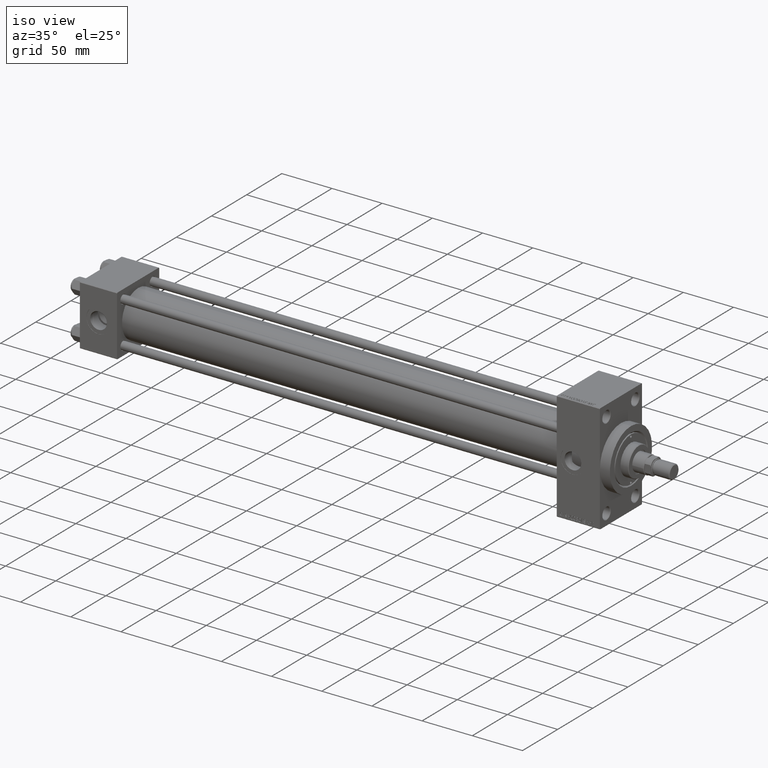
[diagram: clean part render]
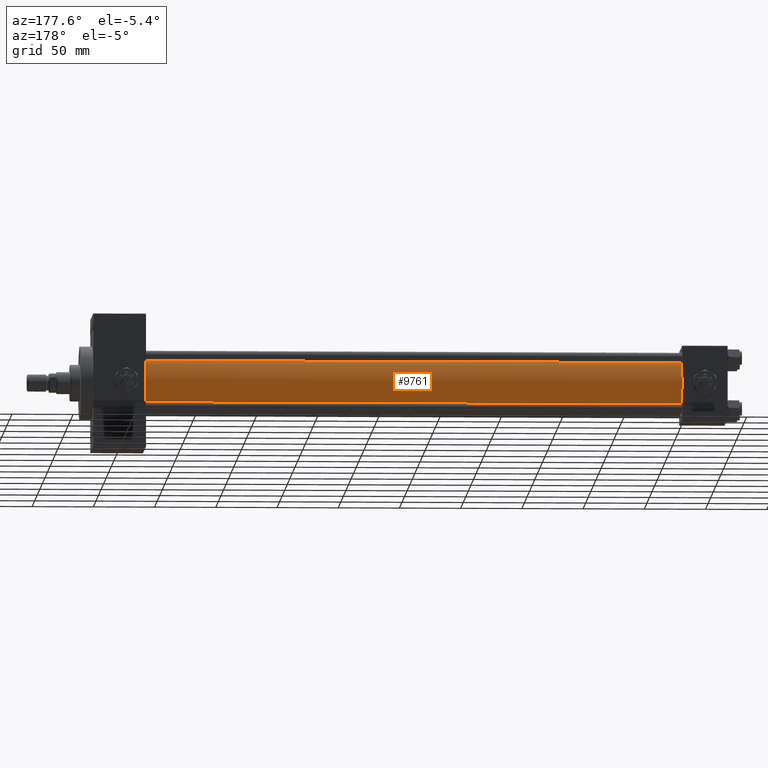
[diagram: tour spotlight — one face highlighted and labeled with its STEP entity id]
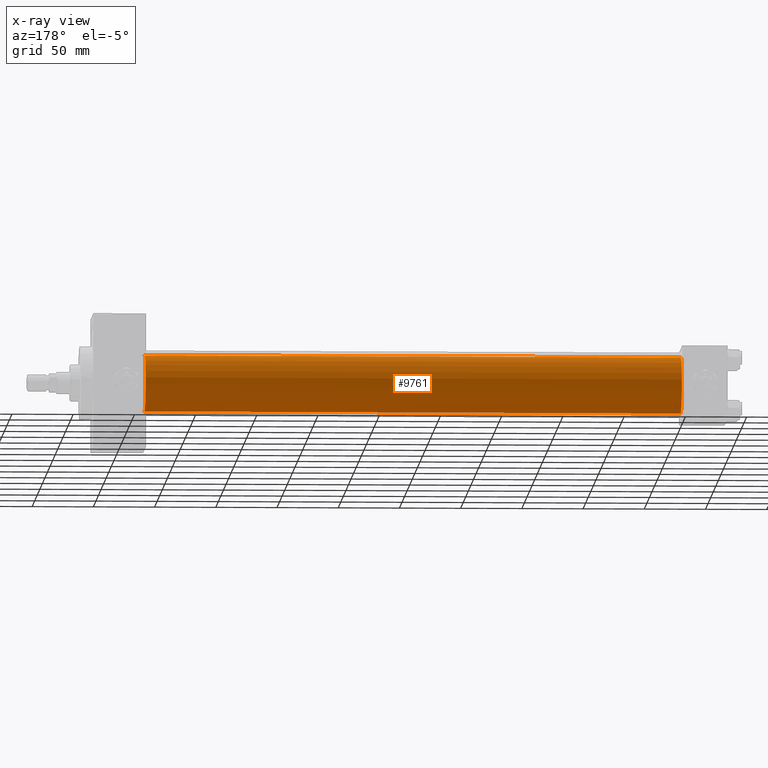
[diagram: x-ray of the same camera — body ghosted, this tour face saturated]
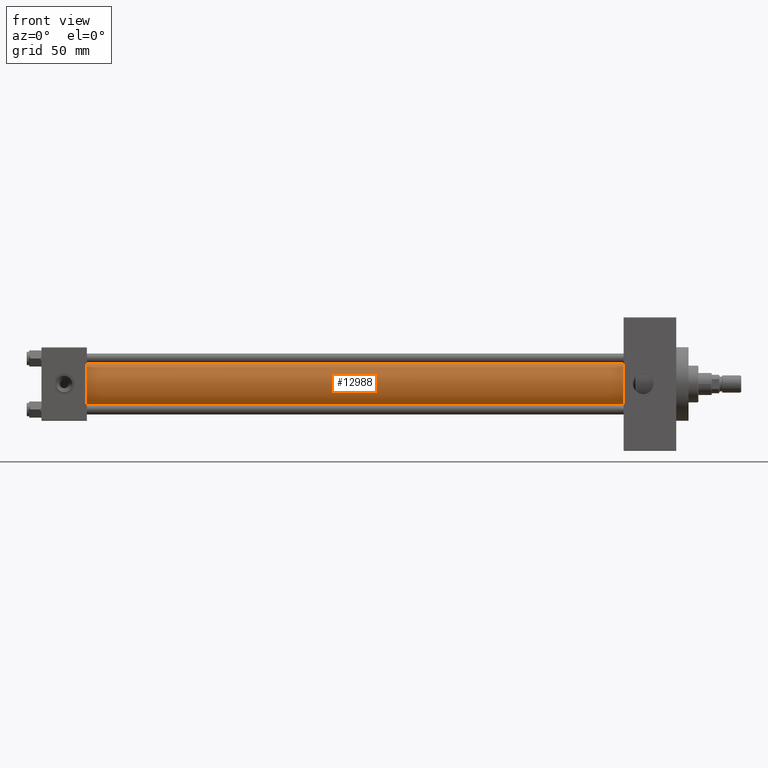
[diagram: tour spotlight — one face highlighted and labeled with its STEP entity id]
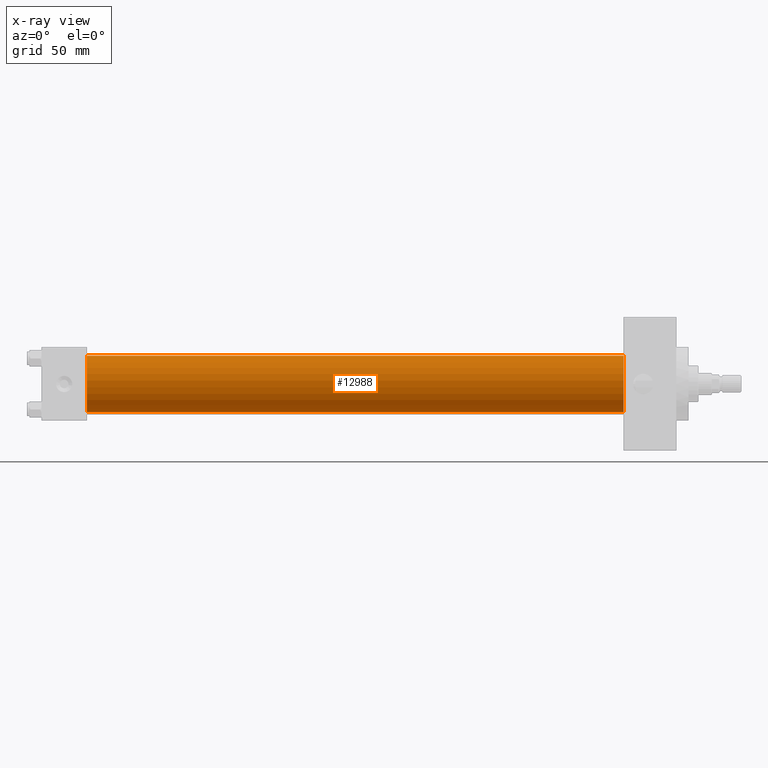
[diagram: x-ray of the same camera — body ghosted, this tour face saturated]
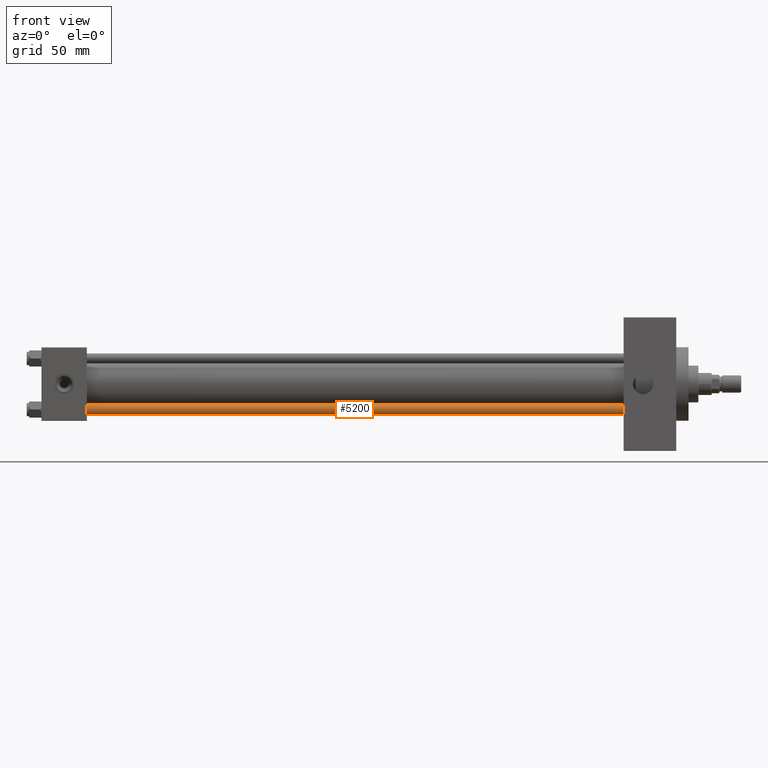
[diagram: tour spotlight — one face highlighted and labeled with its STEP entity id]
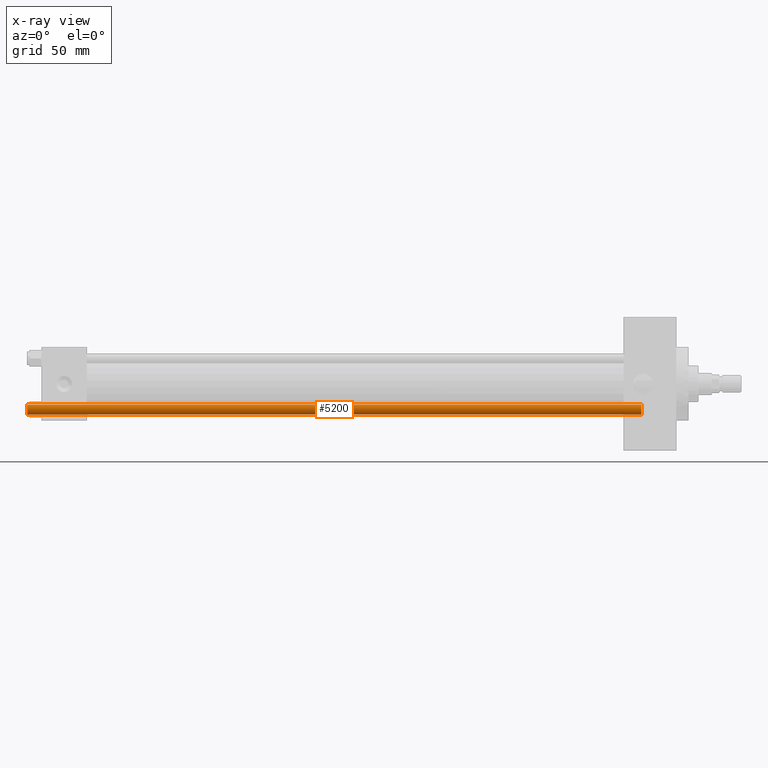
[diagram: x-ray of the same camera — body ghosted, this tour face saturated]
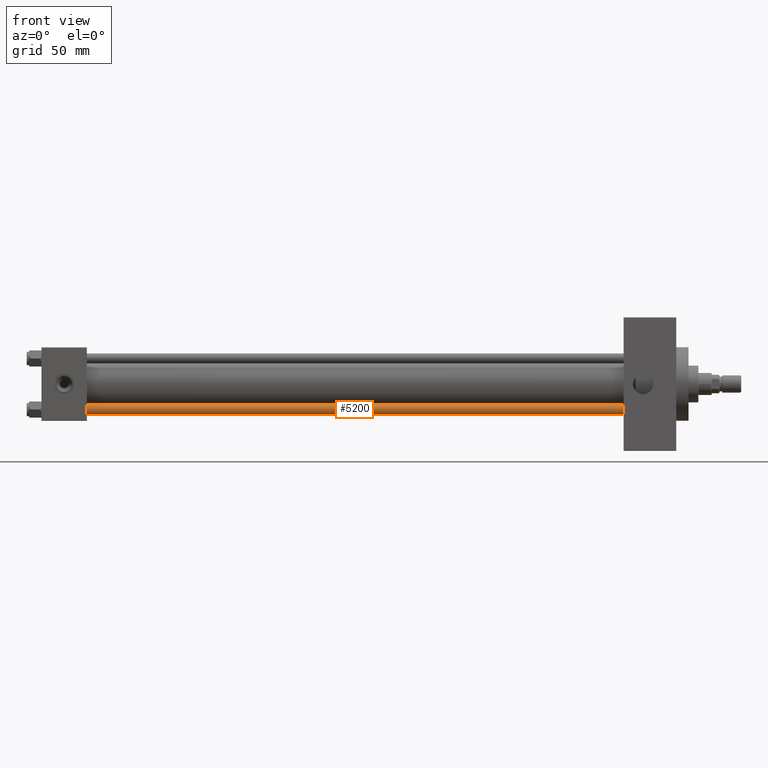
[diagram: tour spotlight — one face highlighted and labeled with its STEP entity id]
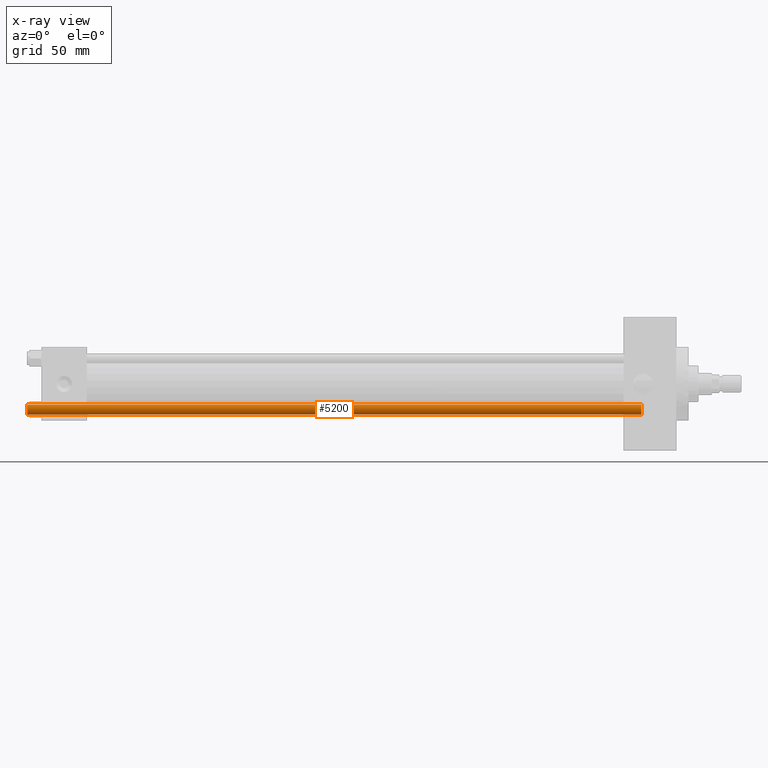
[diagram: x-ray of the same camera — body ghosted, this tour face saturated]
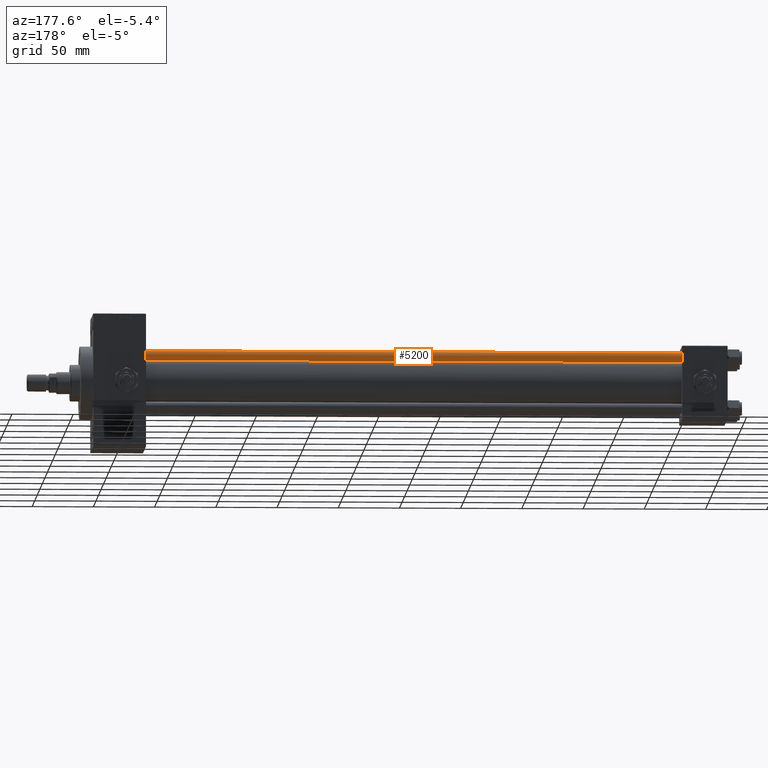
[diagram: tour spotlight — one face highlighted and labeled with its STEP entity id]
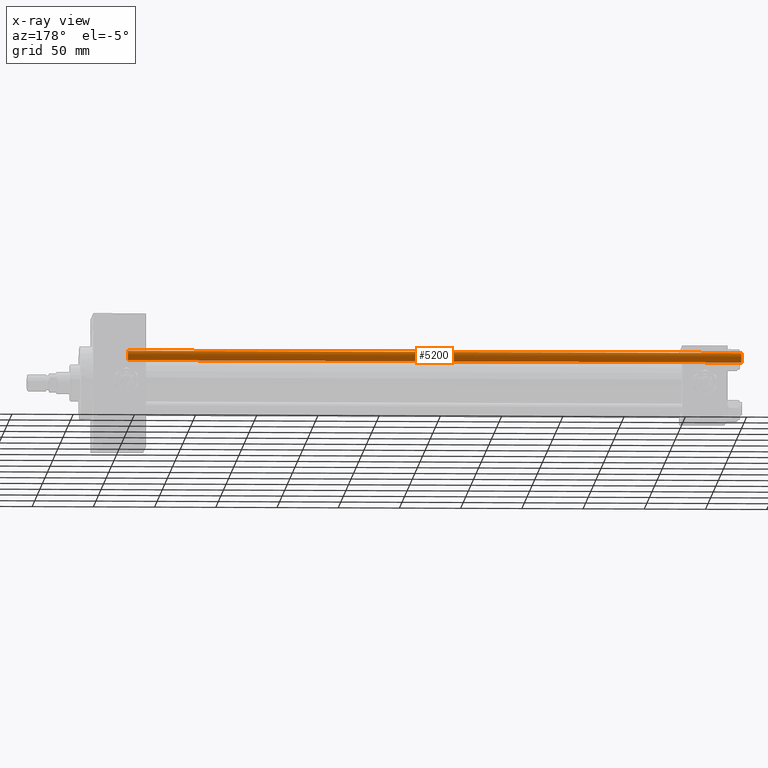
[diagram: x-ray of the same camera — body ghosted, this tour face saturated]
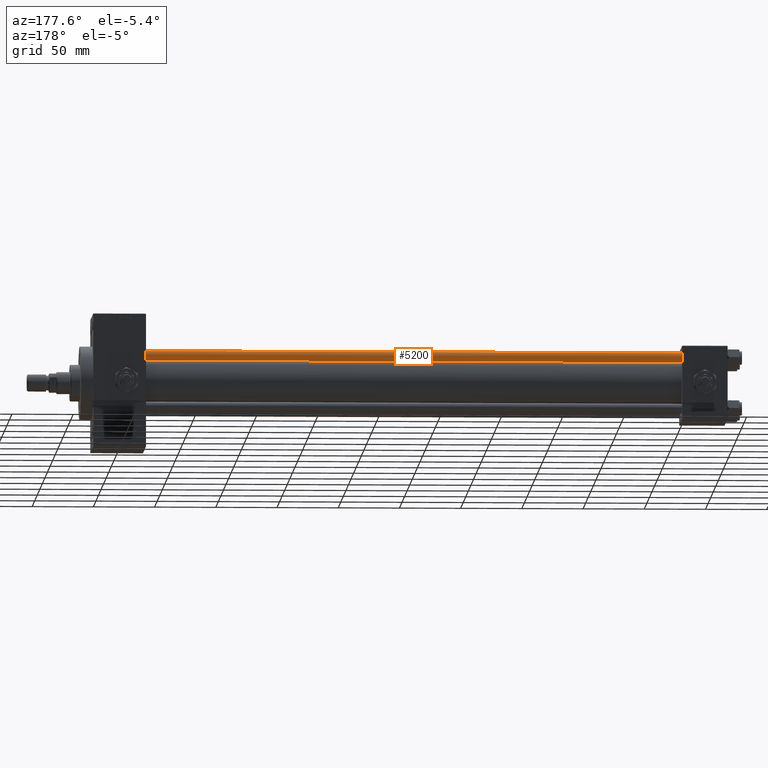
[diagram: tour spotlight — one face highlighted and labeled with its STEP entity id]
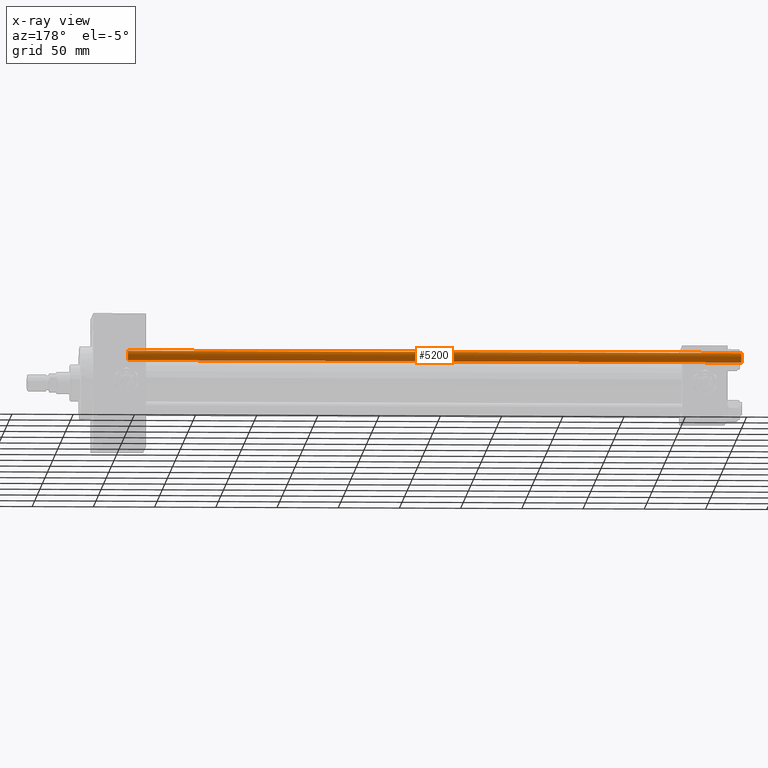
[diagram: x-ray of the same camera — body ghosted, this tour face saturated]
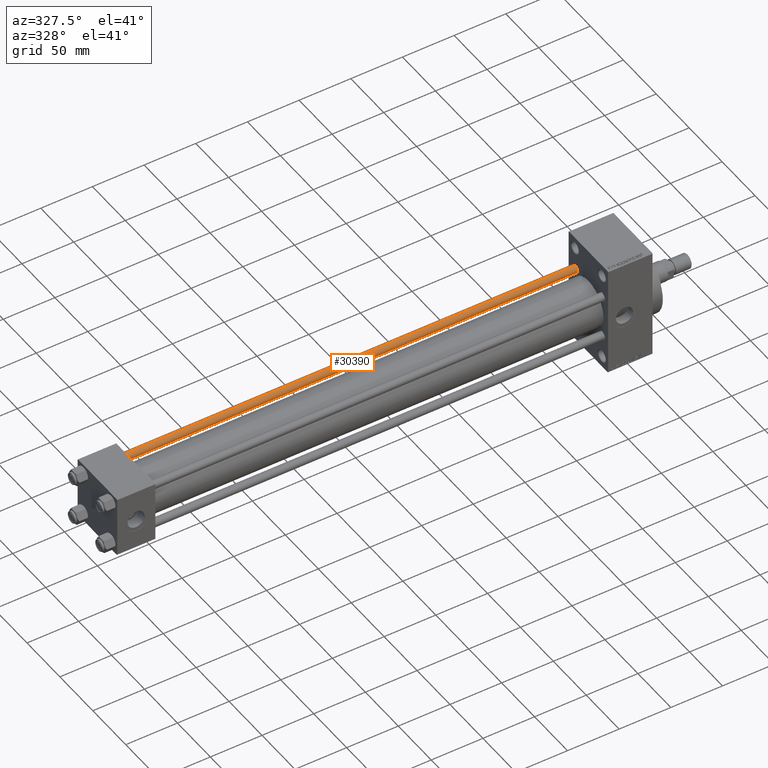
[diagram: tour spotlight — one face highlighted and labeled with its STEP entity id]
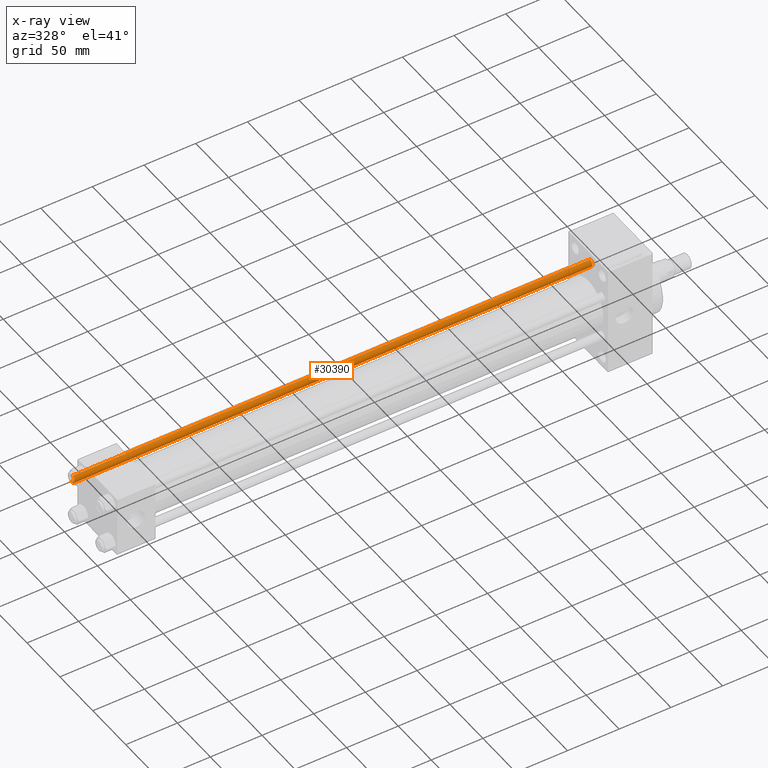
[diagram: x-ray of the same camera — body ghosted, this tour face saturated]
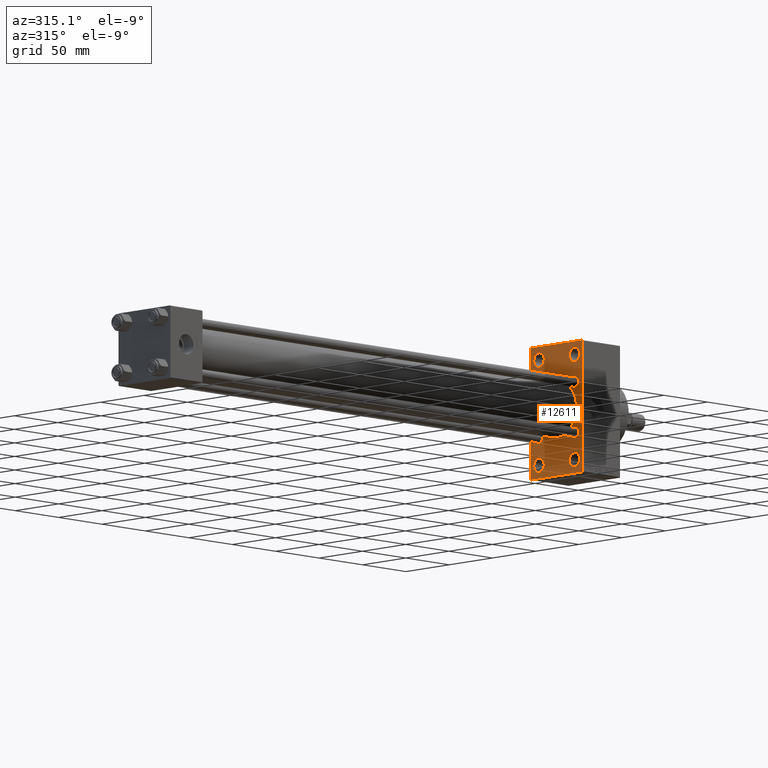
[diagram: tour spotlight — one face highlighted and labeled with its STEP entity id]
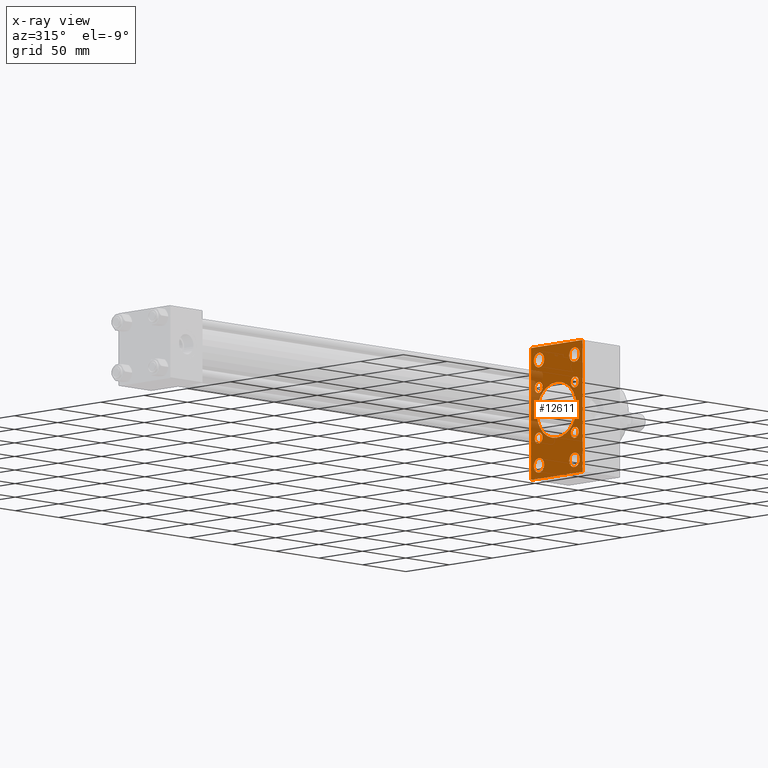
[diagram: x-ray of the same camera — body ghosted, this tour face saturated]
A machine part: a face-by-face anatomy tour. The part has 1228 B-rep faces; the first image is the clean iso view, then the 8 largest visible faces are spotlighted one at a time (largest first), each with its STEP entity span.

Face 1 — auxiliary view, entity #9761. An x-ray twin of the same camera follows (body ghosted, this face saturated) — the face is partly hidden behind the body. In plain terms, the highlighted cylindrical surface (edge-blend (fillet) strip) has radius 23 mm, axis along (-1, -0, -0).
Definition (entity closure, byte-faithful):
#324 = DIRECTION ( 'NONE',  ( 1.000000000000000000, -0.000000000000000000, 0.000000000000000000 ) ) ;
#551 = CARTESIAN_POINT ( 'NONE',  ( 475.0000000000000000, -2.602085213965210642E-15, 0.000000000000000000 ) ) ;
#6511 = EDGE_CURVE ( 'NONE', #38598, #46415, #16557, .T. ) ;
#7230 = LINE ( 'NONE', #22867, #13663 ) ;
#7618 = FACE_OUTER_BOUND ( 'NONE', #15244, .T. ) ;
#7866 = DIRECTION ( 'NONE',  ( -1.000000000000000000, -0.000000000000000000, -0.000000000000000000 ) ) ;
#8002 = CARTESIAN_POINT ( 'NONE',  ( 475.0000000000000000, -2.602085213965210642E-15, 0.000000000000000000 ) ) ;
#8379 = CYLINDRICAL_SURFACE ( 'NONE', #43566, 23.00000000000000000 ) ;
#8755 = DIRECTION ( 'NONE',  ( 1.000000000000000000, 0.000000000000000000, 0.000000000000000000 ) ) ;
#9165 = AXIS2_PLACEMENT_3D ( 'NONE', #8002, #8755, #35799 ) ;
#9761 = ADVANCED_FACE ( 'NONE', ( #7618 ), #8379, .T. ) ;
#12930 = CIRCLE ( 'NONE', #39544, 23.00000000000000000 ) ;
#13663 = VECTOR ( 'NONE', #41592, 1000.000000000000000 ) ;
#15244 = EDGE_LOOP ( 'NONE', ( #26399, #18777, #28300, #29517 ) ) ;
#16125 = VERTEX_POINT ( 'NONE', #17919 ) ;
#16557 = LINE ( 'NONE', #42837, #38612 ) ;
#17449 = CARTESIAN_POINT ( 'NONE',  ( 475.0000000000000000, 2.146024240737016609E-16, -23.00000000000000000 ) ) ;
#17919 = CARTESIAN_POINT ( 'NONE',  ( 475.0000000000000000, -2.602085213965210642E-15, 23.00000000000000000 ) ) ;
#18777 = ORIENTED_EDGE ( 'NONE', *, *, #6511, .T. ) ;
#19485 = DIRECTION ( 'NONE',  ( 0.000000000000000000, 0.000000000000000000, 1.000000000000000000 ) ) ;
#21106 = EDGE_CURVE ( 'NONE', #38598, #16125, #45464, .T. ) ;
#22867 = CARTESIAN_POINT ( 'NONE',  ( 475.0000000000000000, -2.602085213965210642E-15, 23.00000000000000000 ) ) ;
#23220 = CARTESIAN_POINT ( 'NONE',  ( 36.99999999999997868, 2.146024240737016609E-16, -23.00000000000000000 ) ) ;
#26399 = ORIENTED_EDGE ( 'NONE', *, *, #21106, .F. ) ;
#28174 = DIRECTION ( 'NONE',  ( -1.000000000000000000, -0.000000000000000000, -0.000000000000000000 ) ) ;
#28300 = ORIENTED_EDGE ( 'NONE', *, *, #43432, .T. ) ;
#29517 = ORIENTED_EDGE ( 'NONE', *, *, #41505, .F. ) ;
#30374 = CARTESIAN_POINT ( 'NONE',  ( 36.99999999999997868, -2.602085213965210642E-15, 0.000000000000000000 ) ) ;
#30435 = CARTESIAN_POINT ( 'NONE',  ( 36.99999999999997868, -2.602085213965210642E-15, 23.00000000000000000 ) ) ;
#35388 = VERTEX_POINT ( 'NONE', #30435 ) ;
#35799 = DIRECTION ( 'NONE',  ( 0.000000000000000000, 0.000000000000000000, -1.000000000000000000 ) ) ;
#38598 = VERTEX_POINT ( 'NONE', #17449 ) ;
#38612 = VECTOR ( 'NONE', #28174, 1000.000000000000000 ) ;
#39544 = AXIS2_PLACEMENT_3D ( 'NONE', #30374, #324, #45782 ) ;
#41505 = EDGE_CURVE ( 'NONE', #16125, #35388, #7230, .T. ) ;
#41592 = DIRECTION ( 'NONE',  ( -1.000000000000000000, -0.000000000000000000, -0.000000000000000000 ) ) ;
#42837 = CARTESIAN_POINT ( 'NONE',  ( 475.0000000000000000, 2.146024240737016609E-16, -23.00000000000000000 ) ) ;
#43432 = EDGE_CURVE ( 'NONE', #46415, #35388, #12930, .T. ) ;
#43566 = AXIS2_PLACEMENT_3D ( 'NONE', #551, #7866, #19485 ) ;
#45464 = CIRCLE ( 'NONE', #9165, 23.00000000000000000 ) ;
#45782 = DIRECTION ( 'NONE',  ( 0.000000000000000000, 0.000000000000000000, 1.000000000000000000 ) ) ;
#46415 = VERTEX_POINT ( 'NONE', #23220 ) ;

Face 2 — front view, entity #12988. An x-ray twin of the same camera follows (body ghosted, this face saturated) — the face is partly hidden behind the body. In plain terms, the highlighted cylindrical surface (edge-blend (fillet) strip) has radius 23 mm, axis along (-1, -0, -0).
Definition (entity closure, byte-faithful):
#3195 = CIRCLE ( 'NONE', #20095, 23.00000000000000000 ) ;
#4576 = CARTESIAN_POINT ( 'NONE',  ( 475.0000000000000000, -2.602085213965210642E-15, 0.000000000000000000 ) ) ;
#5739 = ORIENTED_EDGE ( 'NONE', *, *, #6511, .F. ) ;
#6511 = EDGE_CURVE ( 'NONE', #38598, #46415, #16557, .T. ) ;
#7230 = LINE ( 'NONE', #22867, #13663 ) ;
#8823 = DIRECTION ( 'NONE',  ( 0.000000000000000000, 0.000000000000000000, 1.000000000000000000 ) ) ;
#9173 = FACE_OUTER_BOUND ( 'NONE', #12565, .T. ) ;
#12565 = EDGE_LOOP ( 'NONE', ( #5739, #24984, #33519, #24322 ) ) ;
#12988 = ADVANCED_FACE ( 'NONE', ( #9173 ), #39484, .T. ) ;
#13456 = DIRECTION ( 'NONE',  ( 0.000000000000000000, 0.000000000000000000, 1.000000000000000000 ) ) ;
#13663 = VECTOR ( 'NONE', #41592, 1000.000000000000000 ) ;
#16125 = VERTEX_POINT ( 'NONE', #17919 ) ;
#16557 = LINE ( 'NONE', #42837, #38612 ) ;
#17449 = CARTESIAN_POINT ( 'NONE',  ( 475.0000000000000000, 2.146024240737016609E-16, -23.00000000000000000 ) ) ;
#17919 = CARTESIAN_POINT ( 'NONE',  ( 475.0000000000000000, -2.602085213965210642E-15, 23.00000000000000000 ) ) ;
#18798 = EDGE_CURVE ( 'NONE', #16125, #38598, #25202, .T. ) ;
#20095 = AXIS2_PLACEMENT_3D ( 'NONE', #32310, #36096, #8823 ) ;
#21881 = AXIS2_PLACEMENT_3D ( 'NONE', #40477, #44019, #13456 ) ;
#22867 = CARTESIAN_POINT ( 'NONE',  ( 475.0000000000000000, -2.602085213965210642E-15, 23.00000000000000000 ) ) ;
#23220 = CARTESIAN_POINT ( 'NONE',  ( 36.99999999999997868, 2.146024240737016609E-16, -23.00000000000000000 ) ) ;
#23245 = DIRECTION ( 'NONE',  ( 1.000000000000000000, 0.000000000000000000, 0.000000000000000000 ) ) ;
#24322 = ORIENTED_EDGE ( 'NONE', *, *, #41683, .T. ) ;
#24984 = ORIENTED_EDGE ( 'NONE', *, *, #18798, .F. ) ;
#25202 = CIRCLE ( 'NONE', #42135, 23.00000000000000000 ) ;
#28174 = DIRECTION ( 'NONE',  ( -1.000000000000000000, -0.000000000000000000, -0.000000000000000000 ) ) ;
#30435 = CARTESIAN_POINT ( 'NONE',  ( 36.99999999999997868, -2.602085213965210642E-15, 23.00000000000000000 ) ) ;
#32310 = CARTESIAN_POINT ( 'NONE',  ( 36.99999999999997868, -2.602085213965210642E-15, 0.000000000000000000 ) ) ;
#33519 = ORIENTED_EDGE ( 'NONE', *, *, #41505, .T. ) ;
#35388 = VERTEX_POINT ( 'NONE', #30435 ) ;
#35895 = DIRECTION ( 'NONE',  ( 0.000000000000000000, 0.000000000000000000, -1.000000000000000000 ) ) ;
#36096 = DIRECTION ( 'NONE',  ( 1.000000000000000000, -0.000000000000000000, 0.000000000000000000 ) ) ;
#38598 = VERTEX_POINT ( 'NONE', #17449 ) ;
#38612 = VECTOR ( 'NONE', #28174, 1000.000000000000000 ) ;
#39484 = CYLINDRICAL_SURFACE ( 'NONE', #21881, 23.00000000000000000 ) ;
#40477 = CARTESIAN_POINT ( 'NONE',  ( 475.0000000000000000, -2.602085213965210642E-15, 0.000000000000000000 ) ) ;
#41505 = EDGE_CURVE ( 'NONE', #16125, #35388, #7230, .T. ) ;
#41592 = DIRECTION ( 'NONE',  ( -1.000000000000000000, -0.000000000000000000, -0.000000000000000000 ) ) ;
#41683 = EDGE_CURVE ( 'NONE', #35388, #46415, #3195, .T. ) ;
#42135 = AXIS2_PLACEMENT_3D ( 'NONE', #4576, #23245, #35895 ) ;
#42837 = CARTESIAN_POINT ( 'NONE',  ( 475.0000000000000000, 2.146024240737016609E-16, -23.00000000000000000 ) ) ;
#44019 = DIRECTION ( 'NONE',  ( -1.000000000000000000, -0.000000000000000000, -0.000000000000000000 ) ) ;
#46415 = VERTEX_POINT ( 'NONE', #23220 ) ;

Face 3 — front view, entity #5200. An x-ray twin of the same camera follows (body ghosted, this face saturated) — the face is partly hidden behind the body. In plain terms, the highlighted cylindrical surface (edge-blend (fillet) strip) has radius 4 mm, axis along (1, 0, 0).
Definition (entity closure, byte-faithful):
#1383 = CYLINDRICAL_SURFACE ( 'NONE', #14371, 4.000000000000000000 ) ;
#1637 = DIRECTION ( 'NONE',  ( -1.000000000000000000, 0.000000000000000000, 0.000000000000000000 ) ) ;
#2119 = AXIS2_PLACEMENT_3D ( 'NONE', #41424, #18903, #22204 ) ;
#2853 = CARTESIAN_POINT ( 'NONE',  ( -4.000000000000000000, 0.000000000000000000, 0.4999999999999449329 ) ) ;
#4301 = VERTEX_POINT ( 'NONE', #27884 ) ;
#5200 = ADVANCED_FACE ( 'NONE', ( #36246 ), #1383, .T. ) ;
#5929 = DIRECTION ( 'NONE',  ( -0.000000000000000000, -0.000000000000000000, -1.000000000000000000 ) ) ;
#6596 = CARTESIAN_POINT ( 'NONE',  ( 4.000000000000000000, 4.898587196589412829E-16, 502.0000000000000000 ) ) ;
#7584 = CIRCLE ( 'NONE', #13275, 4.000000000000000000 ) ;
#10420 = ORIENTED_EDGE ( 'NONE', *, *, #29584, .T. ) ;
#10837 = CARTESIAN_POINT ( 'NONE',  ( 4.000000000000000000, 4.898587196589412829E-16, 0.4999999999999449329 ) ) ;
#10989 = VERTEX_POINT ( 'NONE', #10837 ) ;
#13275 = AXIS2_PLACEMENT_3D ( 'NONE', #21988, #33617, #16653 ) ;
#13415 = CIRCLE ( 'NONE', #2119, 4.000000000000000000 ) ;
#14253 = CARTESIAN_POINT ( 'NONE',  ( -4.000000000000000000, 0.000000000000000000, 502.0000000000000000 ) ) ;
#14371 = AXIS2_PLACEMENT_3D ( 'NONE', #16788, #5929, #1637 ) ;
#14758 = VERTEX_POINT ( 'NONE', #2853 ) ;
#16653 = DIRECTION ( 'NONE',  ( 1.000000000000000000, 0.000000000000000000, 0.000000000000000000 ) ) ;
#16788 = CARTESIAN_POINT ( 'NONE',  ( 0.000000000000000000, 0.000000000000000000, 502.0000000000000000 ) ) ;
#18679 = DIRECTION ( 'NONE',  ( -0.000000000000000000, -0.000000000000000000, -1.000000000000000000 ) ) ;
#18903 = DIRECTION ( 'NONE',  ( -0.000000000000000000, -0.000000000000000000, 1.000000000000000000 ) ) ;
#19181 = ORIENTED_EDGE ( 'NONE', *, *, #24812, .T. ) ;
#21811 = DIRECTION ( 'NONE',  ( -0.000000000000000000, -0.000000000000000000, -1.000000000000000000 ) ) ;
#21988 = CARTESIAN_POINT ( 'NONE',  ( 0.000000000000000000, 0.000000000000000000, 501.4999999999999432 ) ) ;
#22204 = DIRECTION ( 'NONE',  ( 1.000000000000000000, 0.000000000000000000, 0.000000000000000000 ) ) ;
#23663 = CARTESIAN_POINT ( 'NONE',  ( 4.000000000000000000, 4.898587196589412829E-16, 501.4999999999999432 ) ) ;
#24812 = EDGE_CURVE ( 'NONE', #34242, #10989, #37645, .T. ) ;
#25604 = LINE ( 'NONE', #14253, #26761 ) ;
#25891 = EDGE_CURVE ( 'NONE', #4301, #34242, #7584, .T. ) ;
#26761 = VECTOR ( 'NONE', #21811, 1000.000000000000000 ) ;
#27884 = CARTESIAN_POINT ( 'NONE',  ( -4.000000000000000000, 0.000000000000000000, 501.4999999999999432 ) ) ;
#29584 = EDGE_CURVE ( 'NONE', #10989, #14758, #13415, .T. ) ;
#31528 = EDGE_LOOP ( 'NONE', ( #47548, #19181, #10420, #42967 ) ) ;
#33617 = DIRECTION ( 'NONE',  ( 0.000000000000000000, 0.000000000000000000, -1.000000000000000000 ) ) ;
#34242 = VERTEX_POINT ( 'NONE', #23663 ) ;
#36246 = FACE_OUTER_BOUND ( 'NONE', #31528, .T. ) ;
#37645 = LINE ( 'NONE', #6596, #47231 ) ;
#41424 = CARTESIAN_POINT ( 'NONE',  ( 0.000000000000000000, 0.000000000000000000, 0.4999999999999449329 ) ) ;
#42967 = ORIENTED_EDGE ( 'NONE', *, *, #47957, .F. ) ;
#47231 = VECTOR ( 'NONE', #18679, 1000.000000000000000 ) ;
#47548 = ORIENTED_EDGE ( 'NONE', *, *, #25891, .T. ) ;
#47957 = EDGE_CURVE ( 'NONE', #4301, #14758, #25604, .T. ) ;

Face 4 — front view, entity #5200. An x-ray twin of the same camera follows (body ghosted, this face saturated) — the face is partly hidden behind the body. In plain terms, the highlighted cylindrical surface (edge-blend (fillet) strip) has radius 4 mm, axis along (-1, 0, 0).
Definition (entity closure, byte-faithful):
#1383 = CYLINDRICAL_SURFACE ( 'NONE', #14371, 4.000000000000000000 ) ;
#1637 = DIRECTION ( 'NONE',  ( -1.000000000000000000, 0.000000000000000000, 0.000000000000000000 ) ) ;
#2119 = AXIS2_PLACEMENT_3D ( 'NONE', #41424, #18903, #22204 ) ;
#2853 = CARTESIAN_POINT ( 'NONE',  ( -4.000000000000000000, 0.000000000000000000, 0.4999999999999449329 ) ) ;
#4301 = VERTEX_POINT ( 'NONE', #27884 ) ;
#5200 = ADVANCED_FACE ( 'NONE', ( #36246 ), #1383, .T. ) ;
#5929 = DIRECTION ( 'NONE',  ( -0.000000000000000000, -0.000000000000000000, -1.000000000000000000 ) ) ;
#6596 = CARTESIAN_POINT ( 'NONE',  ( 4.000000000000000000, 4.898587196589412829E-16, 502.0000000000000000 ) ) ;
#7584 = CIRCLE ( 'NONE', #13275, 4.000000000000000000 ) ;
#10420 = ORIENTED_EDGE ( 'NONE', *, *, #29584, .T. ) ;
#10837 = CARTESIAN_POINT ( 'NONE',  ( 4.000000000000000000, 4.898587196589412829E-16, 0.4999999999999449329 ) ) ;
#10989 = VERTEX_POINT ( 'NONE', #10837 ) ;
#13275 = AXIS2_PLACEMENT_3D ( 'NONE', #21988, #33617, #16653 ) ;
#13415 = CIRCLE ( 'NONE', #2119, 4.000000000000000000 ) ;
#14253 = CARTESIAN_POINT ( 'NONE',  ( -4.000000000000000000, 0.000000000000000000, 502.0000000000000000 ) ) ;
#14371 = AXIS2_PLACEMENT_3D ( 'NONE', #16788, #5929, #1637 ) ;
#14758 = VERTEX_POINT ( 'NONE', #2853 ) ;
#16653 = DIRECTION ( 'NONE',  ( 1.000000000000000000, 0.000000000000000000, 0.000000000000000000 ) ) ;
#16788 = CARTESIAN_POINT ( 'NONE',  ( 0.000000000000000000, 0.000000000000000000, 502.0000000000000000 ) ) ;
#18679 = DIRECTION ( 'NONE',  ( -0.000000000000000000, -0.000000000000000000, -1.000000000000000000 ) ) ;
#18903 = DIRECTION ( 'NONE',  ( -0.000000000000000000, -0.000000000000000000, 1.000000000000000000 ) ) ;
#19181 = ORIENTED_EDGE ( 'NONE', *, *, #24812, .T. ) ;
#21811 = DIRECTION ( 'NONE',  ( -0.000000000000000000, -0.000000000000000000, -1.000000000000000000 ) ) ;
#21988 = CARTESIAN_POINT ( 'NONE',  ( 0.000000000000000000, 0.000000000000000000, 501.4999999999999432 ) ) ;
#22204 = DIRECTION ( 'NONE',  ( 1.000000000000000000, 0.000000000000000000, 0.000000000000000000 ) ) ;
#23663 = CARTESIAN_POINT ( 'NONE',  ( 4.000000000000000000, 4.898587196589412829E-16, 501.4999999999999432 ) ) ;
#24812 = EDGE_CURVE ( 'NONE', #34242, #10989, #37645, .T. ) ;
#25604 = LINE ( 'NONE', #14253, #26761 ) ;
#25891 = EDGE_CURVE ( 'NONE', #4301, #34242, #7584, .T. ) ;
#26761 = VECTOR ( 'NONE', #21811, 1000.000000000000000 ) ;
#27884 = CARTESIAN_POINT ( 'NONE',  ( -4.000000000000000000, 0.000000000000000000, 501.4999999999999432 ) ) ;
#29584 = EDGE_CURVE ( 'NONE', #10989, #14758, #13415, .T. ) ;
#31528 = EDGE_LOOP ( 'NONE', ( #47548, #19181, #10420, #42967 ) ) ;
#33617 = DIRECTION ( 'NONE',  ( 0.000000000000000000, 0.000000000000000000, -1.000000000000000000 ) ) ;
#34242 = VERTEX_POINT ( 'NONE', #23663 ) ;
#36246 = FACE_OUTER_BOUND ( 'NONE', #31528, .T. ) ;
#37645 = LINE ( 'NONE', #6596, #47231 ) ;
#41424 = CARTESIAN_POINT ( 'NONE',  ( 0.000000000000000000, 0.000000000000000000, 0.4999999999999449329 ) ) ;
#42967 = ORIENTED_EDGE ( 'NONE', *, *, #47957, .F. ) ;
#47231 = VECTOR ( 'NONE', #18679, 1000.000000000000000 ) ;
#47548 = ORIENTED_EDGE ( 'NONE', *, *, #25891, .T. ) ;
#47957 = EDGE_CURVE ( 'NONE', #4301, #14758, #25604, .T. ) ;

Face 5 — auxiliary view, entity #5200. An x-ray twin of the same camera follows (body ghosted, this face saturated) — the face is partly hidden behind the body. In plain terms, the highlighted cylindrical surface (edge-blend (fillet) strip) has radius 4 mm, axis along (1, -0, 0).
Definition (entity closure, byte-faithful):
#1383 = CYLINDRICAL_SURFACE ( 'NONE', #14371, 4.000000000000000000 ) ;
#1637 = DIRECTION ( 'NONE',  ( -1.000000000000000000, 0.000000000000000000, 0.000000000000000000 ) ) ;
#2119 = AXIS2_PLACEMENT_3D ( 'NONE', #41424, #18903, #22204 ) ;
#2853 = CARTESIAN_POINT ( 'NONE',  ( -4.000000000000000000, 0.000000000000000000, 0.4999999999999449329 ) ) ;
#4301 = VERTEX_POINT ( 'NONE', #27884 ) ;
#5200 = ADVANCED_FACE ( 'NONE', ( #36246 ), #1383, .T. ) ;
#5929 = DIRECTION ( 'NONE',  ( -0.000000000000000000, -0.000000000000000000, -1.000000000000000000 ) ) ;
#6596 = CARTESIAN_POINT ( 'NONE',  ( 4.000000000000000000, 4.898587196589412829E-16, 502.0000000000000000 ) ) ;
#7584 = CIRCLE ( 'NONE', #13275, 4.000000000000000000 ) ;
#10420 = ORIENTED_EDGE ( 'NONE', *, *, #29584, .T. ) ;
#10837 = CARTESIAN_POINT ( 'NONE',  ( 4.000000000000000000, 4.898587196589412829E-16, 0.4999999999999449329 ) ) ;
#10989 = VERTEX_POINT ( 'NONE', #10837 ) ;
#13275 = AXIS2_PLACEMENT_3D ( 'NONE', #21988, #33617, #16653 ) ;
#13415 = CIRCLE ( 'NONE', #2119, 4.000000000000000000 ) ;
#14253 = CARTESIAN_POINT ( 'NONE',  ( -4.000000000000000000, 0.000000000000000000, 502.0000000000000000 ) ) ;
#14371 = AXIS2_PLACEMENT_3D ( 'NONE', #16788, #5929, #1637 ) ;
#14758 = VERTEX_POINT ( 'NONE', #2853 ) ;
#16653 = DIRECTION ( 'NONE',  ( 1.000000000000000000, 0.000000000000000000, 0.000000000000000000 ) ) ;
#16788 = CARTESIAN_POINT ( 'NONE',  ( 0.000000000000000000, 0.000000000000000000, 502.0000000000000000 ) ) ;
#18679 = DIRECTION ( 'NONE',  ( -0.000000000000000000, -0.000000000000000000, -1.000000000000000000 ) ) ;
#18903 = DIRECTION ( 'NONE',  ( -0.000000000000000000, -0.000000000000000000, 1.000000000000000000 ) ) ;
#19181 = ORIENTED_EDGE ( 'NONE', *, *, #24812, .T. ) ;
#21811 = DIRECTION ( 'NONE',  ( -0.000000000000000000, -0.000000000000000000, -1.000000000000000000 ) ) ;
#21988 = CARTESIAN_POINT ( 'NONE',  ( 0.000000000000000000, 0.000000000000000000, 501.4999999999999432 ) ) ;
#22204 = DIRECTION ( 'NONE',  ( 1.000000000000000000, 0.000000000000000000, 0.000000000000000000 ) ) ;
#23663 = CARTESIAN_POINT ( 'NONE',  ( 4.000000000000000000, 4.898587196589412829E-16, 501.4999999999999432 ) ) ;
#24812 = EDGE_CURVE ( 'NONE', #34242, #10989, #37645, .T. ) ;
#25604 = LINE ( 'NONE', #14253, #26761 ) ;
#25891 = EDGE_CURVE ( 'NONE', #4301, #34242, #7584, .T. ) ;
#26761 = VECTOR ( 'NONE', #21811, 1000.000000000000000 ) ;
#27884 = CARTESIAN_POINT ( 'NONE',  ( -4.000000000000000000, 0.000000000000000000, 501.4999999999999432 ) ) ;
#29584 = EDGE_CURVE ( 'NONE', #10989, #14758, #13415, .T. ) ;
#31528 = EDGE_LOOP ( 'NONE', ( #47548, #19181, #10420, #42967 ) ) ;
#33617 = DIRECTION ( 'NONE',  ( 0.000000000000000000, 0.000000000000000000, -1.000000000000000000 ) ) ;
#34242 = VERTEX_POINT ( 'NONE', #23663 ) ;
#36246 = FACE_OUTER_BOUND ( 'NONE', #31528, .T. ) ;
#37645 = LINE ( 'NONE', #6596, #47231 ) ;
#41424 = CARTESIAN_POINT ( 'NONE',  ( 0.000000000000000000, 0.000000000000000000, 0.4999999999999449329 ) ) ;
#42967 = ORIENTED_EDGE ( 'NONE', *, *, #47957, .F. ) ;
#47231 = VECTOR ( 'NONE', #18679, 1000.000000000000000 ) ;
#47548 = ORIENTED_EDGE ( 'NONE', *, *, #25891, .T. ) ;
#47957 = EDGE_CURVE ( 'NONE', #4301, #14758, #25604, .T. ) ;

Face 6 — auxiliary view, entity #5200. An x-ray twin of the same camera follows (body ghosted, this face saturated) — the face is partly hidden behind the body. In plain terms, the highlighted cylindrical surface (edge-blend (fillet) strip) has radius 4 mm, axis along (-1, -0, 0).
Definition (entity closure, byte-faithful):
#1383 = CYLINDRICAL_SURFACE ( 'NONE', #14371, 4.000000000000000000 ) ;
#1637 = DIRECTION ( 'NONE',  ( -1.000000000000000000, 0.000000000000000000, 0.000000000000000000 ) ) ;
#2119 = AXIS2_PLACEMENT_3D ( 'NONE', #41424, #18903, #22204 ) ;
#2853 = CARTESIAN_POINT ( 'NONE',  ( -4.000000000000000000, 0.000000000000000000, 0.4999999999999449329 ) ) ;
#4301 = VERTEX_POINT ( 'NONE', #27884 ) ;
#5200 = ADVANCED_FACE ( 'NONE', ( #36246 ), #1383, .T. ) ;
#5929 = DIRECTION ( 'NONE',  ( -0.000000000000000000, -0.000000000000000000, -1.000000000000000000 ) ) ;
#6596 = CARTESIAN_POINT ( 'NONE',  ( 4.000000000000000000, 4.898587196589412829E-16, 502.0000000000000000 ) ) ;
#7584 = CIRCLE ( 'NONE', #13275, 4.000000000000000000 ) ;
#10420 = ORIENTED_EDGE ( 'NONE', *, *, #29584, .T. ) ;
#10837 = CARTESIAN_POINT ( 'NONE',  ( 4.000000000000000000, 4.898587196589412829E-16, 0.4999999999999449329 ) ) ;
#10989 = VERTEX_POINT ( 'NONE', #10837 ) ;
#13275 = AXIS2_PLACEMENT_3D ( 'NONE', #21988, #33617, #16653 ) ;
#13415 = CIRCLE ( 'NONE', #2119, 4.000000000000000000 ) ;
#14253 = CARTESIAN_POINT ( 'NONE',  ( -4.000000000000000000, 0.000000000000000000, 502.0000000000000000 ) ) ;
#14371 = AXIS2_PLACEMENT_3D ( 'NONE', #16788, #5929, #1637 ) ;
#14758 = VERTEX_POINT ( 'NONE', #2853 ) ;
#16653 = DIRECTION ( 'NONE',  ( 1.000000000000000000, 0.000000000000000000, 0.000000000000000000 ) ) ;
#16788 = CARTESIAN_POINT ( 'NONE',  ( 0.000000000000000000, 0.000000000000000000, 502.0000000000000000 ) ) ;
#18679 = DIRECTION ( 'NONE',  ( -0.000000000000000000, -0.000000000000000000, -1.000000000000000000 ) ) ;
#18903 = DIRECTION ( 'NONE',  ( -0.000000000000000000, -0.000000000000000000, 1.000000000000000000 ) ) ;
#19181 = ORIENTED_EDGE ( 'NONE', *, *, #24812, .T. ) ;
#21811 = DIRECTION ( 'NONE',  ( -0.000000000000000000, -0.000000000000000000, -1.000000000000000000 ) ) ;
#21988 = CARTESIAN_POINT ( 'NONE',  ( 0.000000000000000000, 0.000000000000000000, 501.4999999999999432 ) ) ;
#22204 = DIRECTION ( 'NONE',  ( 1.000000000000000000, 0.000000000000000000, 0.000000000000000000 ) ) ;
#23663 = CARTESIAN_POINT ( 'NONE',  ( 4.000000000000000000, 4.898587196589412829E-16, 501.4999999999999432 ) ) ;
#24812 = EDGE_CURVE ( 'NONE', #34242, #10989, #37645, .T. ) ;
#25604 = LINE ( 'NONE', #14253, #26761 ) ;
#25891 = EDGE_CURVE ( 'NONE', #4301, #34242, #7584, .T. ) ;
#26761 = VECTOR ( 'NONE', #21811, 1000.000000000000000 ) ;
#27884 = CARTESIAN_POINT ( 'NONE',  ( -4.000000000000000000, 0.000000000000000000, 501.4999999999999432 ) ) ;
#29584 = EDGE_CURVE ( 'NONE', #10989, #14758, #13415, .T. ) ;
#31528 = EDGE_LOOP ( 'NONE', ( #47548, #19181, #10420, #42967 ) ) ;
#33617 = DIRECTION ( 'NONE',  ( 0.000000000000000000, 0.000000000000000000, -1.000000000000000000 ) ) ;
#34242 = VERTEX_POINT ( 'NONE', #23663 ) ;
#36246 = FACE_OUTER_BOUND ( 'NONE', #31528, .T. ) ;
#37645 = LINE ( 'NONE', #6596, #47231 ) ;
#41424 = CARTESIAN_POINT ( 'NONE',  ( 0.000000000000000000, 0.000000000000000000, 0.4999999999999449329 ) ) ;
#42967 = ORIENTED_EDGE ( 'NONE', *, *, #47957, .F. ) ;
#47231 = VECTOR ( 'NONE', #18679, 1000.000000000000000 ) ;
#47548 = ORIENTED_EDGE ( 'NONE', *, *, #25891, .T. ) ;
#47957 = EDGE_CURVE ( 'NONE', #4301, #14758, #25604, .T. ) ;

Face 7 — auxiliary view, entity #30390. An x-ray twin of the same camera follows (body ghosted, this face saturated) — the face is partly hidden behind the body. In plain terms, the highlighted cylindrical surface (edge-blend (fillet) strip) has radius 4 mm, axis along (-1, -0, 0).
Definition (entity closure, byte-faithful):
#2853 = CARTESIAN_POINT ( 'NONE',  ( -4.000000000000000000, 0.000000000000000000, 0.4999999999999449329 ) ) ;
#3106 = DIRECTION ( 'NONE',  ( 0.000000000000000000, 0.000000000000000000, -1.000000000000000000 ) ) ;
#4301 = VERTEX_POINT ( 'NONE', #27884 ) ;
#5779 = CIRCLE ( 'NONE', #38029, 4.000000000000000000 ) ;
#6596 = CARTESIAN_POINT ( 'NONE',  ( 4.000000000000000000, 4.898587196589412829E-16, 502.0000000000000000 ) ) ;
#8502 = CIRCLE ( 'NONE', #46397, 4.000000000000000000 ) ;
#9025 = ORIENTED_EDGE ( 'NONE', *, *, #16664, .T. ) ;
#10837 = CARTESIAN_POINT ( 'NONE',  ( 4.000000000000000000, 4.898587196589412829E-16, 0.4999999999999449329 ) ) ;
#10989 = VERTEX_POINT ( 'NONE', #10837 ) ;
#11522 = CARTESIAN_POINT ( 'NONE',  ( 0.000000000000000000, 0.000000000000000000, 0.4999999999999449329 ) ) ;
#14174 = FACE_OUTER_BOUND ( 'NONE', #49990, .T. ) ;
#14253 = CARTESIAN_POINT ( 'NONE',  ( -4.000000000000000000, 0.000000000000000000, 502.0000000000000000 ) ) ;
#14758 = VERTEX_POINT ( 'NONE', #2853 ) ;
#16664 = EDGE_CURVE ( 'NONE', #14758, #10989, #5779, .T. ) ;
#18223 = AXIS2_PLACEMENT_3D ( 'NONE', #44967, #34847, #49758 ) ;
#18679 = DIRECTION ( 'NONE',  ( -0.000000000000000000, -0.000000000000000000, -1.000000000000000000 ) ) ;
#21811 = DIRECTION ( 'NONE',  ( -0.000000000000000000, -0.000000000000000000, -1.000000000000000000 ) ) ;
#23663 = CARTESIAN_POINT ( 'NONE',  ( 4.000000000000000000, 4.898587196589412829E-16, 501.4999999999999432 ) ) ;
#24431 = EDGE_CURVE ( 'NONE', #34242, #4301, #8502, .T. ) ;
#24812 = EDGE_CURVE ( 'NONE', #34242, #10989, #37645, .T. ) ;
#25604 = LINE ( 'NONE', #14253, #26761 ) ;
#26086 = CARTESIAN_POINT ( 'NONE',  ( 0.000000000000000000, 0.000000000000000000, 501.4999999999999432 ) ) ;
#26761 = VECTOR ( 'NONE', #21811, 1000.000000000000000 ) ;
#27884 = CARTESIAN_POINT ( 'NONE',  ( -4.000000000000000000, 0.000000000000000000, 501.4999999999999432 ) ) ;
#29560 = CYLINDRICAL_SURFACE ( 'NONE', #18223, 4.000000000000000000 ) ;
#30390 = ADVANCED_FACE ( 'NONE', ( #14174 ), #29560, .T. ) ;
#32387 = ORIENTED_EDGE ( 'NONE', *, *, #24431, .T. ) ;
#33672 = DIRECTION ( 'NONE',  ( 1.000000000000000000, 0.000000000000000000, 0.000000000000000000 ) ) ;
#33776 = DIRECTION ( 'NONE',  ( 1.000000000000000000, 0.000000000000000000, 0.000000000000000000 ) ) ;
#34242 = VERTEX_POINT ( 'NONE', #23663 ) ;
#34847 = DIRECTION ( 'NONE',  ( -0.000000000000000000, -0.000000000000000000, -1.000000000000000000 ) ) ;
#37645 = LINE ( 'NONE', #6596, #47231 ) ;
#38029 = AXIS2_PLACEMENT_3D ( 'NONE', #11522, #49184, #33776 ) ;
#40980 = ORIENTED_EDGE ( 'NONE', *, *, #47957, .T. ) ;
#43277 = ORIENTED_EDGE ( 'NONE', *, *, #24812, .F. ) ;
#44967 = CARTESIAN_POINT ( 'NONE',  ( 0.000000000000000000, 0.000000000000000000, 502.0000000000000000 ) ) ;
#46397 = AXIS2_PLACEMENT_3D ( 'NONE', #26086, #3106, #33672 ) ;
#47231 = VECTOR ( 'NONE', #18679, 1000.000000000000000 ) ;
#47957 = EDGE_CURVE ( 'NONE', #4301, #14758, #25604, .T. ) ;
#49184 = DIRECTION ( 'NONE',  ( -0.000000000000000000, -0.000000000000000000, 1.000000000000000000 ) ) ;
#49758 = DIRECTION ( 'NONE',  ( -1.000000000000000000, 0.000000000000000000, 0.000000000000000000 ) ) ;
#49990 = EDGE_LOOP ( 'NONE', ( #43277, #32387, #40980, #9025 ) ) ;

Face 8 — auxiliary view, entity #12611. An x-ray twin of the same camera follows (body ghosted, this face saturated) — the face is partly hidden behind the body. In plain terms, the highlighted planar face has unit normal (-1, 0, 0).
Definition (entity closure, byte-faithful):
#377 = VERTEX_POINT ( 'NONE', #16010 ) ;
#396 = DIRECTION ( 'NONE',  ( 1.000000000000000000, -0.000000000000000000, 0.000000000000000000 ) ) ;
#607 = CIRCLE ( 'NONE', #39291, 5.999999999999783284 ) ;
#672 = AXIS2_PLACEMENT_3D ( 'NONE', #10450, #14255, #2381 ) ;
#735 = ORIENTED_EDGE ( 'NONE', *, *, #41813, .T. ) ;
#873 = DIRECTION ( 'NONE',  ( 1.000000000000000000, -0.000000000000000000, 0.000000000000000000 ) ) ;
#881 = ORIENTED_EDGE ( 'NONE', *, *, #18798, .T. ) ;
#1092 = LINE ( 'NONE', #5881, #23915 ) ;
#1138 = CARTESIAN_POINT ( 'NONE',  ( 475.0000000000000000, 29.99999999999999645, 53.99999999999999289 ) ) ;
#1284 = EDGE_LOOP ( 'NONE', ( #36481, #29917, #31001, #13097, #13821, #1694, #2888, #20481 ) ) ;
#1694 = ORIENTED_EDGE ( 'NONE', *, *, #42149, .T. ) ;
#1841 = CIRCLE ( 'NONE', #26819, 4.500000000000007105 ) ;
#1996 = EDGE_CURVE ( 'NONE', #42781, #28066, #40297, .T. ) ;
#2328 = DIRECTION ( 'NONE',  ( 0.000000000000000000, 0.000000000000000000, 1.000000000000000000 ) ) ;
#2381 = DIRECTION ( 'NONE',  ( 0.000000000000000000, 0.000000000000000000, 1.000000000000000000 ) ) ;
#2730 = CARTESIAN_POINT ( 'NONE',  ( 475.0000000000000000, 20.84999999999999787, 16.34999999999999432 ) ) ;
#2740 = DIRECTION ( 'NONE',  ( 0.000000000000000000, 0.000000000000000000, 1.000000000000000000 ) ) ;
#2795 = VERTEX_POINT ( 'NONE', #20462 ) ;
#2813 = CIRCLE ( 'NONE', #38273, 4.500000000000007105 ) ;
#2888 = ORIENTED_EDGE ( 'NONE', *, *, #23254, .T. ) ;
#3455 = DIRECTION ( 'NONE',  ( 0.000000000000000000, 0.000000000000000000, 1.000000000000000000 ) ) ;
#3806 = ORIENTED_EDGE ( 'NONE', *, *, #10209, .T. ) ;
#3908 = AXIS2_PLACEMENT_3D ( 'NONE', #8310, #8806, #20661 ) ;
#4281 = DIRECTION ( 'NONE',  ( 0.000000000000000000, 0.000000000000000000, 1.000000000000000000 ) ) ;
#4576 = CARTESIAN_POINT ( 'NONE',  ( 475.0000000000000000, -2.602085213965210642E-15, 0.000000000000000000 ) ) ;
#4787 = AXIS2_PLACEMENT_3D ( 'NONE', #48710, #14611, #2740 ) ;
#4952 = VERTEX_POINT ( 'NONE', #36093 ) ;
#5208 = VERTEX_POINT ( 'NONE', #1138 ) ;
#5339 = LINE ( 'NONE', #44473, #25820 ) ;
#5542 = CIRCLE ( 'NONE', #3908, 5.999999999999783284 ) ;
#5881 = CARTESIAN_POINT ( 'NONE',  ( 475.0000000000000000, -30.00000000000000000, 54.50000000000000000 ) ) ;
#6208 = DIRECTION ( 'NONE',  ( 0.000000000000000000, 0.000000000000000000, 1.000000000000000000 ) ) ;
#6270 = DIRECTION ( 'NONE',  ( -0.000000000000000000, 0.000000000000000000, 1.000000000000000000 ) ) ;
#6291 = VECTOR ( 'NONE', #26573, 1000.000000000000000 ) ;
#6563 = EDGE_LOOP ( 'NONE', ( #43574, #12365 ) ) ;
#6572 = AXIS2_PLACEMENT_3D ( 'NONE', #45002, #18219, #2328 ) ;
#7294 = VERTEX_POINT ( 'NONE', #48874 ) ;
#7665 = DIRECTION ( 'NONE',  ( 1.000000000000000000, -0.000000000000000000, 0.000000000000000000 ) ) ;
#7713 = VERTEX_POINT ( 'NONE', #31584 ) ;
#8002 = CARTESIAN_POINT ( 'NONE',  ( 475.0000000000000000, -2.602085213965210642E-15, 0.000000000000000000 ) ) ;
#8068 = DIRECTION ( 'NONE',  ( 0.000000000000000000, 0.000000000000000000, 1.000000000000000000 ) ) ;
#8310 = CARTESIAN_POINT ( 'NONE',  ( 475.0000000000000000, 20.50000000000000000, 43.50000000000000000 ) ) ;
#8317 = CARTESIAN_POINT ( 'NONE',  ( 475.0000000000000000, 20.84999999999999787, -20.85000000000000142 ) ) ;
#8609 = EDGE_CURVE ( 'NONE', #49687, #29909, #37068, .T. ) ;
#8755 = DIRECTION ( 'NONE',  ( 1.000000000000000000, 0.000000000000000000, 0.000000000000000000 ) ) ;
#8806 = DIRECTION ( 'NONE',  ( 1.000000000000000000, -0.000000000000000000, 0.000000000000000000 ) ) ;
#9165 = AXIS2_PLACEMENT_3D ( 'NONE', #8002, #8755, #35799 ) ;
#9316 = EDGE_CURVE ( 'NONE', #4952, #35136, #32279, .T. ) ;
#9820 = FACE_BOUND ( 'NONE', #14377, .T. ) ;
#9879 = EDGE_CURVE ( 'NONE', #44513, #377, #5339, .T. ) ;
#10147 = EDGE_CURVE ( 'NONE', #15764, #41423, #20606, .T. ) ;
#10209 = EDGE_CURVE ( 'NONE', #49297, #7713, #18557, .T. ) ;
#10450 = CARTESIAN_POINT ( 'NONE',  ( 475.0000000000000000, -20.50000000000000000, -43.50000000000000000 ) ) ;
#10498 = AXIS2_PLACEMENT_3D ( 'NONE', #24892, #40308, #37266 ) ;
#11367 = CARTESIAN_POINT ( 'NONE',  ( 475.0000000000000000, 29.99999999999999645, 54.49999999999999289 ) ) ;
#11374 = AXIS2_PLACEMENT_3D ( 'NONE', #45165, #26443, #6270 ) ;
#11480 = CARTESIAN_POINT ( 'NONE',  ( 475.0000000000000000, 20.50000000000000000, 43.50000000000000000 ) ) ;
#11525 = DIRECTION ( 'NONE',  ( 1.000000000000000000, -0.000000000000000000, 0.000000000000000000 ) ) ;
#11630 = VECTOR ( 'NONE', #42447, 1000.000000000000000 ) ;
#12110 = ORIENTED_EDGE ( 'NONE', *, *, #20814, .T. ) ;
#12145 = VERTEX_POINT ( 'NONE', #33175 ) ;
#12365 = ORIENTED_EDGE ( 'NONE', *, *, #45109, .T. ) ;
#12611 = ADVANCED_FACE ( 'NONE', ( #32798, #17146, #44416, #28761, #9820, #47216, #44174, #43427, #18133, #30004 ), #41616, .T. ) ;
#13055 = DIRECTION ( 'NONE',  ( -0.000000000000000000, -0.7071067811865867636, -0.7071067811865081598 ) ) ;
#13097 = ORIENTED_EDGE ( 'NONE', *, *, #39076, .T. ) ;
#13128 = EDGE_CURVE ( 'NONE', #24929, #12145, #28345, .T. ) ;
#13143 = DIRECTION ( 'NONE',  ( 1.000000000000000000, -0.000000000000000000, 0.000000000000000000 ) ) ;
#13153 = ORIENTED_EDGE ( 'NONE', *, *, #18982, .T. ) ;
#13164 = DIRECTION ( 'NONE',  ( 0.000000000000000000, 0.000000000000000000, 1.000000000000000000 ) ) ;
#13821 = ORIENTED_EDGE ( 'NONE', *, *, #9879, .F. ) ;
#14025 = VERTEX_POINT ( 'NONE', #16685 ) ;
#14255 = DIRECTION ( 'NONE',  ( 1.000000000000000000, -0.000000000000000000, 0.000000000000000000 ) ) ;
#14377 = EDGE_LOOP ( 'NONE', ( #13153, #40092 ) ) ;
#14491 = VECTOR ( 'NONE', #40820, 1000.000000000000000 ) ;
#14611 = DIRECTION ( 'NONE',  ( 1.000000000000000000, -0.000000000000000000, 0.000000000000000000 ) ) ;
#14619 = CARTESIAN_POINT ( 'NONE',  ( 475.0000000000000000, 20.84999999999999787, -16.34999999999999432 ) ) ;
#14764 = CARTESIAN_POINT ( 'NONE',  ( 475.0000000000000000, -30.00000000000000000, 54.00000000000000000 ) ) ;
#15508 = DIRECTION ( 'NONE',  ( 0.000000000000000000, 0.000000000000000000, 1.000000000000000000 ) ) ;
#15558 = DIRECTION ( 'NONE',  ( 0.000000000000000000, 0.000000000000000000, 1.000000000000000000 ) ) ;
#15764 = VERTEX_POINT ( 'NONE', #21512 ) ;
#15809 = DIRECTION ( 'NONE',  ( 0.000000000000000000, 0.000000000000000000, 1.000000000000000000 ) ) ;
#16010 = CARTESIAN_POINT ( 'NONE',  ( 475.0000000000000000, -29.49999999999994671, 54.50000000000000000 ) ) ;
#16125 = VERTEX_POINT ( 'NONE', #17919 ) ;
#16410 = CARTESIAN_POINT ( 'NONE',  ( 475.0000000000000000, -20.84999999999999076, -20.85000000000000497 ) ) ;
#16685 = CARTESIAN_POINT ( 'NONE',  ( 475.0000000000000000, -20.50000000000000000, -37.50000000000021316 ) ) ;
#16949 = DIRECTION ( 'NONE',  ( 0.000000000000000000, -1.000000000000000000, 1.156482317317871478E-16 ) ) ;
#17146 = FACE_BOUND ( 'NONE', #33563, .T. ) ;
#17304 = CARTESIAN_POINT ( 'NONE',  ( 475.0000000000000000, -20.84999999999999076, -16.34999999999999787 ) ) ;
#17305 = CIRCLE ( 'NONE', #27795, 5.999999999999783284 ) ;
#17335 = CARTESIAN_POINT ( 'NONE',  ( 475.0000000000000000, 29.99999999999999645, -54.49999999999999289 ) ) ;
#17449 = CARTESIAN_POINT ( 'NONE',  ( 475.0000000000000000, 2.146024240737016609E-16, -23.00000000000000000 ) ) ;
#17788 = AXIS2_PLACEMENT_3D ( 'NONE', #16410, #28524, #47223 ) ;
#17818 = CARTESIAN_POINT ( 'NONE',  ( 475.0000000000000000, -20.50000000000000000, 43.50000000000000000 ) ) ;
#17824 = LINE ( 'NONE', #38199, #14491 ) ;
#17919 = CARTESIAN_POINT ( 'NONE',  ( 475.0000000000000000, -2.602085213965210642E-15, 23.00000000000000000 ) ) ;
#18133 = FACE_BOUND ( 'NONE', #42520, .T. ) ;
#18219 = DIRECTION ( 'NONE',  ( 1.000000000000000000, -0.000000000000000000, 0.000000000000000000 ) ) ;
#18389 = CIRCLE ( 'NONE', #672, 5.999999999999783284 ) ;
#18557 = CIRCLE ( 'NONE', #24224, 5.999999999999783284 ) ;
#18760 = VECTOR ( 'NONE', #37208, 1000.000000000000114 ) ;
#18798 = EDGE_CURVE ( 'NONE', #16125, #38598, #25202, .T. ) ;
#18917 = EDGE_CURVE ( 'NONE', #27611, #7294, #34063, .T. ) ;
#18982 = EDGE_CURVE ( 'NONE', #12145, #24929, #1841, .T. ) ;
#19815 = CARTESIAN_POINT ( 'NONE',  ( 475.0000000000000000, 20.50000000000000000, 49.49999999999977973 ) ) ;
#20123 = AXIS2_PLACEMENT_3D ( 'NONE', #8317, #39133, #4281 ) ;
#20315 = EDGE_CURVE ( 'NONE', #2795, #41688, #45287, .T. ) ;
#20462 = CARTESIAN_POINT ( 'NONE',  ( 475.0000000000000000, -29.49999999999994671, -54.50000000000000000 ) ) ;
#20468 = VECTOR ( 'NONE', #35361, 1000.000000000000000 ) ;
#20481 = ORIENTED_EDGE ( 'NONE', *, *, #10147, .T. ) ;
#20606 = LINE ( 'NONE', #36033, #26638 ) ;
#20661 = DIRECTION ( 'NONE',  ( 0.000000000000000000, 0.000000000000000000, 1.000000000000000000 ) ) ;
#20814 = EDGE_CURVE ( 'NONE', #35136, #4952, #35785, .T. ) ;
#21106 = EDGE_CURVE ( 'NONE', #38598, #16125, #45464, .T. ) ;
#21471 = ORIENTED_EDGE ( 'NONE', *, *, #33653, .T. ) ;
#21472 = EDGE_CURVE ( 'NONE', #41423, #2795, #36538, .T. ) ;
#21512 = CARTESIAN_POINT ( 'NONE',  ( 475.0000000000000000, 29.99999999999999645, -53.99999999999999289 ) ) ;
#21752 = EDGE_LOOP ( 'NONE', ( #49152, #34291 ) ) ;
#22002 = EDGE_LOOP ( 'NONE', ( #735, #3806 ) ) ;
#22133 = CARTESIAN_POINT ( 'NONE',  ( 475.0000000000000000, 20.84999999999999787, 25.35000000000000853 ) ) ;
#22280 = CARTESIAN_POINT ( 'NONE',  ( 475.0000000000000000, -41.99999999999843681, 42.00000000000279954 ) ) ;
#22460 = CIRCLE ( 'NONE', #46720, 4.500000000000007105 ) ;
#23100 = DIRECTION ( 'NONE',  ( 1.000000000000000000, -0.000000000000000000, 0.000000000000000000 ) ) ;
#23207 = CARTESIAN_POINT ( 'NONE',  ( 475.0000000000000000, -20.84999999999999076, 16.34999999999999787 ) ) ;
#23245 = DIRECTION ( 'NONE',  ( 1.000000000000000000, 0.000000000000000000, 0.000000000000000000 ) ) ;
#23254 = EDGE_CURVE ( 'NONE', #5208, #15764, #38398, .T. ) ;
#23355 = EDGE_CURVE ( 'NONE', #46357, #14025, #17305, .T. ) ;
#23434 = ORIENTED_EDGE ( 'NONE', *, *, #21106, .T. ) ;
#23875 = EDGE_CURVE ( 'NONE', #29909, #49687, #2813, .T. ) ;
#23915 = VECTOR ( 'NONE', #44516, 1000.000000000000000 ) ;
#24120 = CARTESIAN_POINT ( 'NONE',  ( 475.0000000000000000, 20.84999999999999787, 20.85000000000000142 ) ) ;
#24224 = AXIS2_PLACEMENT_3D ( 'NONE', #17818, #47895, #6208 ) ;
#24892 = CARTESIAN_POINT ( 'NONE',  ( 475.0000000000000000, 20.50000000000000000, -43.50000000000000000 ) ) ;
#24929 = VERTEX_POINT ( 'NONE', #23207 ) ;
#24951 = AXIS2_PLACEMENT_3D ( 'NONE', #39494, #7665, #15508 ) ;
#25014 = CARTESIAN_POINT ( 'NONE',  ( 475.0000000000000000, -20.84999999999999076, -20.85000000000000497 ) ) ;
#25066 = CARTESIAN_POINT ( 'NONE',  ( 475.0000000000000000, 20.84999999999999787, -25.35000000000000853 ) ) ;
#25202 = CIRCLE ( 'NONE', #42135, 23.00000000000000000 ) ;
#25510 = DIRECTION ( 'NONE',  ( 1.000000000000000000, -0.000000000000000000, 0.000000000000000000 ) ) ;
#25820 = VECTOR ( 'NONE', #16949, 1000.000000000000000 ) ;
#26043 = ORIENTED_EDGE ( 'NONE', *, *, #36609, .T. ) ;
#26443 = DIRECTION ( 'NONE',  ( -1.000000000000000000, 0.000000000000000000, -0.000000000000000000 ) ) ;
#26573 = DIRECTION ( 'NONE',  ( -0.000000000000000000, 0.7071067811865843211, 0.7071067811865108244 ) ) ;
#26638 = VECTOR ( 'NONE', #13055, 1000.000000000000000 ) ;
#26819 = AXIS2_PLACEMENT_3D ( 'NONE', #34260, #11525, #3455 ) ;
#26833 = LINE ( 'NONE', #22280, #6291 ) ;
#27611 = VERTEX_POINT ( 'NONE', #17304 ) ;
#27795 = AXIS2_PLACEMENT_3D ( 'NONE', #35631, #13143, #43208 ) ;
#27857 = VERTEX_POINT ( 'NONE', #14764 ) ;
#28066 = VERTEX_POINT ( 'NONE', #25066 ) ;
#28345 = CIRCLE ( 'NONE', #6572, 4.500000000000007105 ) ;
#28524 = DIRECTION ( 'NONE',  ( 1.000000000000000000, -0.000000000000000000, 0.000000000000000000 ) ) ;
#28761 = FACE_BOUND ( 'NONE', #32810, .T. ) ;
#29328 = CARTESIAN_POINT ( 'NONE',  ( 475.0000000000000000, 20.50000000000000000, -37.50000000000021316 ) ) ;
#29909 = VERTEX_POINT ( 'NONE', #2730 ) ;
#29917 = ORIENTED_EDGE ( 'NONE', *, *, #20315, .T. ) ;
#30004 = FACE_OUTER_BOUND ( 'NONE', #1284, .T. ) ;
#30471 = ORIENTED_EDGE ( 'NONE', *, *, #40453, .T. ) ;
#30563 = CARTESIAN_POINT ( 'NONE',  ( 475.0000000000000000, -20.50000000000000000, -49.49999999999977973 ) ) ;
#30687 = CIRCLE ( 'NONE', #17788, 4.500000000000007105 ) ;
#30839 = ORIENTED_EDGE ( 'NONE', *, *, #9316, .T. ) ;
#31001 = ORIENTED_EDGE ( 'NONE', *, *, #32294, .F. ) ;
#31325 = CARTESIAN_POINT ( 'NONE',  ( 475.0000000000000000, 20.50000000000000000, 37.50000000000021316 ) ) ;
#31554 = CARTESIAN_POINT ( 'NONE',  ( 475.0000000000000000, 20.50000000000000000, -43.50000000000000000 ) ) ;
#31584 = CARTESIAN_POINT ( 'NONE',  ( 475.0000000000000000, -20.50000000000000000, 49.49999999999977973 ) ) ;
#31588 = ORIENTED_EDGE ( 'NONE', *, *, #39834, .T. ) ;
#32279 = CIRCLE ( 'NONE', #10498, 5.999999999999783284 ) ;
#32294 = EDGE_CURVE ( 'NONE', #27857, #41688, #1092, .T. ) ;
#32798 = FACE_BOUND ( 'NONE', #22002, .T. ) ;
#32810 = EDGE_LOOP ( 'NONE', ( #21471, #26043 ) ) ;
#33175 = CARTESIAN_POINT ( 'NONE',  ( 475.0000000000000000, -20.84999999999999076, 25.35000000000001208 ) ) ;
#33563 = EDGE_LOOP ( 'NONE', ( #31588, #41902 ) ) ;
#33653 = EDGE_CURVE ( 'NONE', #34643, #47124, #607, .T. ) ;
#34063 = CIRCLE ( 'NONE', #49399, 4.500000000000007105 ) ;
#34260 = CARTESIAN_POINT ( 'NONE',  ( 475.0000000000000000, -20.84999999999999076, 20.85000000000000497 ) ) ;
#34291 = ORIENTED_EDGE ( 'NONE', *, *, #23875, .T. ) ;
#34643 = VERTEX_POINT ( 'NONE', #19815 ) ;
#35136 = VERTEX_POINT ( 'NONE', #29328 ) ;
#35233 = DIRECTION ( 'NONE',  ( 0.000000000000000000, 0.000000000000000000, 1.000000000000000000 ) ) ;
#35361 = DIRECTION ( 'NONE',  ( 0.000000000000000000, -1.000000000000000000, -1.156482317317871478E-16 ) ) ;
#35631 = CARTESIAN_POINT ( 'NONE',  ( 475.0000000000000000, -20.50000000000000000, -43.50000000000000000 ) ) ;
#35785 = CIRCLE ( 'NONE', #48678, 5.999999999999783284 ) ;
#35799 = DIRECTION ( 'NONE',  ( 0.000000000000000000, 0.000000000000000000, -1.000000000000000000 ) ) ;
#35895 = DIRECTION ( 'NONE',  ( 0.000000000000000000, 0.000000000000000000, -1.000000000000000000 ) ) ;
#36033 = CARTESIAN_POINT ( 'NONE',  ( 475.0000000000000000, 41.99999999999832312, -42.00000000000298428 ) ) ;
#36093 = CARTESIAN_POINT ( 'NONE',  ( 475.0000000000000000, 20.50000000000000000, -49.49999999999977973 ) ) ;
#36128 = CARTESIAN_POINT ( 'NONE',  ( 475.0000000000000000, -20.50000000000000000, 37.50000000000021316 ) ) ;
#36151 = ORIENTED_EDGE ( 'NONE', *, *, #1996, .T. ) ;
#36481 = ORIENTED_EDGE ( 'NONE', *, *, #21472, .T. ) ;
#36538 = LINE ( 'NONE', #17335, #20468 ) ;
#36609 = EDGE_CURVE ( 'NONE', #47124, #34643, #5542, .T. ) ;
#37068 = CIRCLE ( 'NONE', #24951, 4.500000000000007105 ) ;
#37199 = EDGE_LOOP ( 'NONE', ( #36151, #30471 ) ) ;
#37208 = DIRECTION ( 'NONE',  ( 0.000000000000000000, -0.7071067811865745512, 0.7071067811865204833 ) ) ;
#37266 = DIRECTION ( 'NONE',  ( 0.000000000000000000, 0.000000000000000000, 1.000000000000000000 ) ) ;
#37694 = CARTESIAN_POINT ( 'NONE',  ( 475.0000000000000000, -41.99999999999884182, -42.00000000000204636 ) ) ;
#38199 = CARTESIAN_POINT ( 'NONE',  ( 475.0000000000000000, 41.99999999999832312, 42.00000000000298428 ) ) ;
#38273 = AXIS2_PLACEMENT_3D ( 'NONE', #24120, #396, #15809 ) ;
#38398 = LINE ( 'NONE', #11367, #11630 ) ;
#38598 = VERTEX_POINT ( 'NONE', #17449 ) ;
#38632 = CARTESIAN_POINT ( 'NONE',  ( 475.0000000000000000, 29.49999999999993960, 54.49999999999999289 ) ) ;
#39076 = EDGE_CURVE ( 'NONE', #27857, #377, #26833, .T. ) ;
#39133 = DIRECTION ( 'NONE',  ( 1.000000000000000000, -0.000000000000000000, 0.000000000000000000 ) ) ;
#39137 = DIRECTION ( 'NONE',  ( 1.000000000000000000, -0.000000000000000000, 0.000000000000000000 ) ) ;
#39291 = AXIS2_PLACEMENT_3D ( 'NONE', #11480, #873, #35233 ) ;
#39494 = CARTESIAN_POINT ( 'NONE',  ( 475.0000000000000000, 20.84999999999999787, 20.85000000000000142 ) ) ;
#39834 = EDGE_CURVE ( 'NONE', #14025, #46357, #18389, .T. ) ;
#40092 = ORIENTED_EDGE ( 'NONE', *, *, #13128, .T. ) ;
#40099 = CARTESIAN_POINT ( 'NONE',  ( 475.0000000000000000, 29.49999999999993960, -54.49999999999999289 ) ) ;
#40297 = CIRCLE ( 'NONE', #20123, 4.500000000000007105 ) ;
#40308 = DIRECTION ( 'NONE',  ( 1.000000000000000000, -0.000000000000000000, 0.000000000000000000 ) ) ;
#40453 = EDGE_CURVE ( 'NONE', #28066, #42781, #22460, .T. ) ;
#40820 = DIRECTION ( 'NONE',  ( 0.000000000000000000, 0.7071067811865867636, -0.7071067811865081598 ) ) ;
#41400 = CARTESIAN_POINT ( 'NONE',  ( 475.0000000000000000, 20.84999999999999787, -20.85000000000000142 ) ) ;
#41423 = VERTEX_POINT ( 'NONE', #40099 ) ;
#41616 = PLANE ( 'NONE',  #11374 ) ;
#41688 = VERTEX_POINT ( 'NONE', #47720 ) ;
#41813 = EDGE_CURVE ( 'NONE', #7713, #49297, #45127, .T. ) ;
#41902 = ORIENTED_EDGE ( 'NONE', *, *, #23355, .T. ) ;
#42135 = AXIS2_PLACEMENT_3D ( 'NONE', #4576, #23245, #35895 ) ;
#42149 = EDGE_CURVE ( 'NONE', #44513, #5208, #17824, .T. ) ;
#42447 = DIRECTION ( 'NONE',  ( 0.000000000000000000, 0.000000000000000000, -1.000000000000000000 ) ) ;
#42520 = EDGE_LOOP ( 'NONE', ( #881, #23434 ) ) ;
#42781 = VERTEX_POINT ( 'NONE', #14619 ) ;
#43208 = DIRECTION ( 'NONE',  ( 0.000000000000000000, 0.000000000000000000, 1.000000000000000000 ) ) ;
#43427 = FACE_BOUND ( 'NONE', #6563, .T. ) ;
#43574 = ORIENTED_EDGE ( 'NONE', *, *, #18917, .T. ) ;
#44174 = FACE_BOUND ( 'NONE', #37199, .T. ) ;
#44416 = FACE_BOUND ( 'NONE', #47256, .T. ) ;
#44473 = CARTESIAN_POINT ( 'NONE',  ( 475.0000000000000000, 29.99999999999999645, 54.49999999999999289 ) ) ;
#44513 = VERTEX_POINT ( 'NONE', #38632 ) ;
#44516 = DIRECTION ( 'NONE',  ( 0.000000000000000000, 0.000000000000000000, -1.000000000000000000 ) ) ;
#45002 = CARTESIAN_POINT ( 'NONE',  ( 475.0000000000000000, -20.84999999999999076, 20.85000000000000497 ) ) ;
#45109 = EDGE_CURVE ( 'NONE', #7294, #27611, #30687, .T. ) ;
#45127 = CIRCLE ( 'NONE', #4787, 5.999999999999783284 ) ;
#45165 = CARTESIAN_POINT ( 'NONE',  ( 475.0000000000000000, 0.000000000000000000, 0.000000000000000000 ) ) ;
#45287 = LINE ( 'NONE', #37694, #18760 ) ;
#45464 = CIRCLE ( 'NONE', #9165, 23.00000000000000000 ) ;
#46357 = VERTEX_POINT ( 'NONE', #30563 ) ;
#46720 = AXIS2_PLACEMENT_3D ( 'NONE', #41400, #23100, #15558 ) ;
#47124 = VERTEX_POINT ( 'NONE', #31325 ) ;
#47216 = FACE_BOUND ( 'NONE', #21752, .T. ) ;
#47223 = DIRECTION ( 'NONE',  ( 0.000000000000000000, 0.000000000000000000, 1.000000000000000000 ) ) ;
#47256 = EDGE_LOOP ( 'NONE', ( #12110, #30839 ) ) ;
#47720 = CARTESIAN_POINT ( 'NONE',  ( 475.0000000000000000, -30.00000000000000000, -53.99999999999998579 ) ) ;
#47895 = DIRECTION ( 'NONE',  ( 1.000000000000000000, -0.000000000000000000, 0.000000000000000000 ) ) ;
#48678 = AXIS2_PLACEMENT_3D ( 'NONE', #31554, #39137, #8068 ) ;
#48710 = CARTESIAN_POINT ( 'NONE',  ( 475.0000000000000000, -20.50000000000000000, 43.50000000000000000 ) ) ;
#48874 = CARTESIAN_POINT ( 'NONE',  ( 475.0000000000000000, -20.84999999999999076, -25.35000000000001208 ) ) ;
#49152 = ORIENTED_EDGE ( 'NONE', *, *, #8609, .T. ) ;
#49297 = VERTEX_POINT ( 'NONE', #36128 ) ;
#49399 = AXIS2_PLACEMENT_3D ( 'NONE', #25014, #25510, #13164 ) ;
#49687 = VERTEX_POINT ( 'NONE', #22133 ) ;